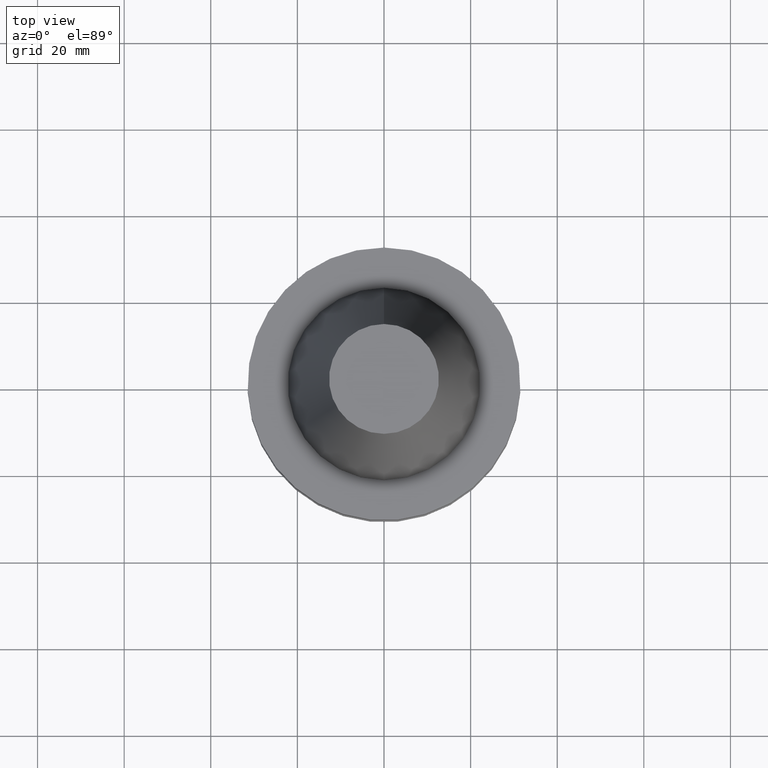
[diagram: clean part render]
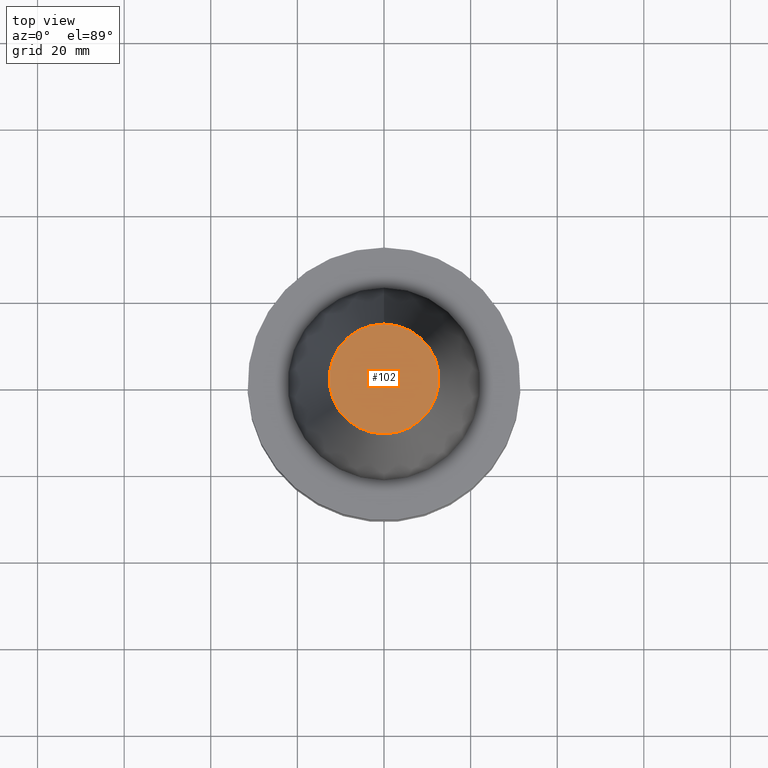
[diagram: same view with one face highlighted and labeled with its STEP entity id]
A machine part, top view. The second image highlights one B-rep face of the part: STEP entity #102.
In plain terms, the highlighted planar face has unit normal (-0, 0, 1).
Its self-contained STEP definition (entity closure, byte-faithful):
#102=ADVANCED_FACE('Unnamed[1]',(#248),#249,.T.);
#152=EDGE_CURVE('Unnamed[1]',#325,#325,#326,.T.);
#248=FACE_OUTER_BOUND('',#442,.T.);
#249=PLANE('',#443);
#325=VERTEX_POINT('',#539);
#326=CIRCLE('',#540,12.6875000000001);
#442=EDGE_LOOP('',(#652));
#443=AXIS2_PLACEMENT_3D('',#653,#654,#655);
#539=CARTESIAN_POINT('',(-4.00459503321185E-015,12.6875000000002,65.4000000000001));
#540=AXIS2_PLACEMENT_3D('',#735,#736,#737);
#652=ORIENTED_EDGE('',*,*,#152,.F.);
#653=CARTESIAN_POINT('',(-4.00459503321185E-015,6.34375000000014,65.4000000000001));
#654=DIRECTION('',(-6.12323399573677E-017,9.97602686800683E-016,1.0));
#655=DIRECTION('',(-5.62583941297938E-032,-1.0,9.97602686800683E-016));
#735=CARTESIAN_POINT('',(-4.00459503321185E-015,7.6707426514566E-014,65.4000000000001));
#736=DIRECTION('',(6.12323399573677E-017,-4.60918739095494E-016,-1.0));
#737=DIRECTION('',(2.33959801942475E-032,1.0,-4.60918739095494E-016));